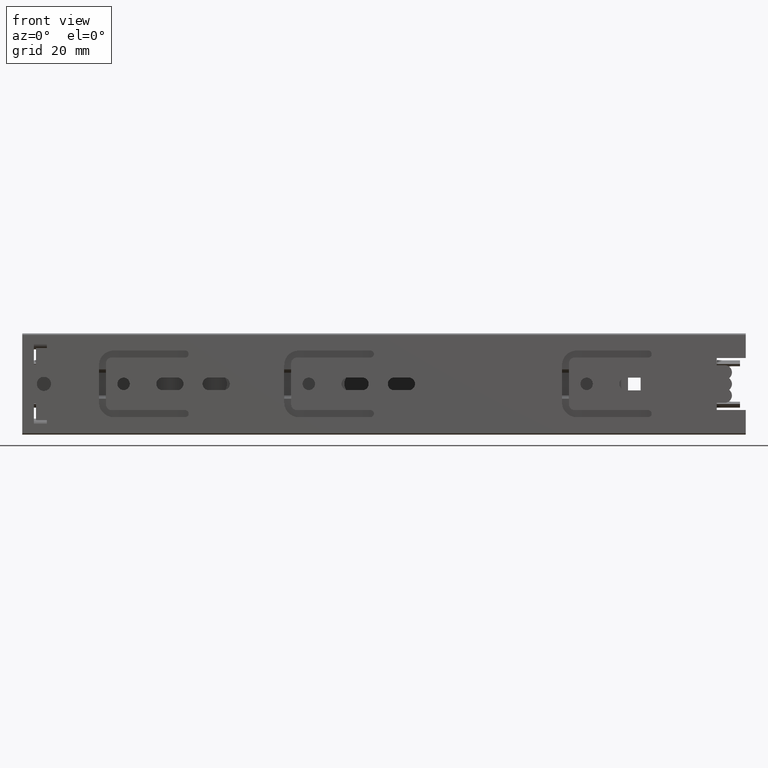
[diagram: clean part render]
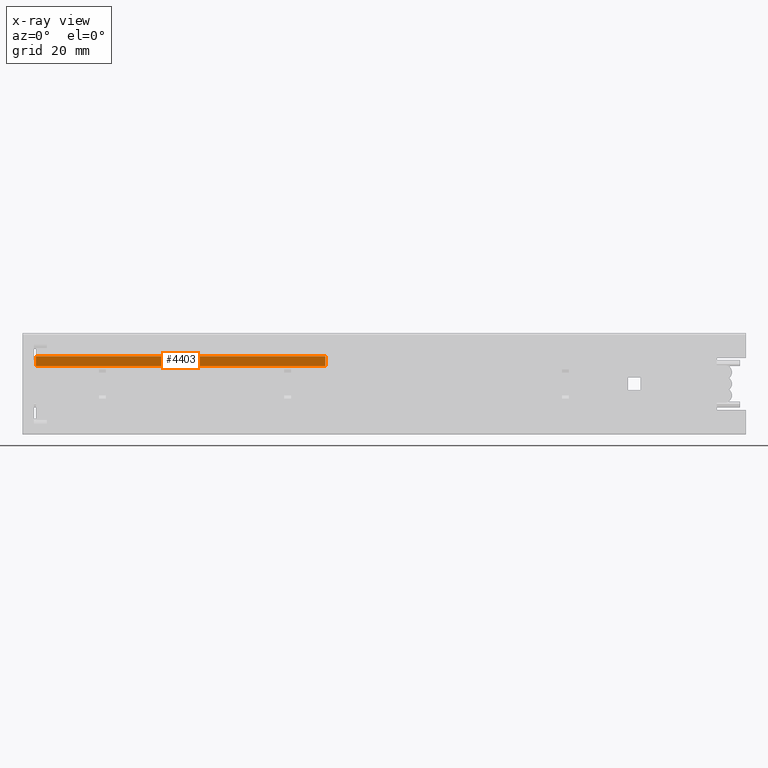
[diagram: x-ray — body ghosted, one internal face saturated and labeled with its STEP entity id]
A machine part, front view, then the same camera in x-ray: the body is ghosted and one INTERNAL B-rep face — a face not visible from any outside direction — is saturated and labeled: STEP entity #4403.
In plain terms, the highlighted planar face has unit normal (-0, -1, 0).
Its self-contained STEP definition (entity closure, byte-faithful):
#397=FACE_OUTER_BOUND('',#673,.T.);
#673=EDGE_LOOP('',(#3997,#3998,#3999,#4000));
#1086=LINE('',#7221,#1544);
#1103=LINE('',#7263,#1561);
#1122=LINE('',#7298,#1580);
#1135=LINE('',#7321,#1593);
#1544=VECTOR('',#5950,100.);
#1561=VECTOR('',#5983,3.4);
#1580=VECTOR('',#6004,3.4);
#1593=VECTOR('',#6025,100.);
#2147=VERTEX_POINT('',#7218);
#2148=VERTEX_POINT('',#7220);
#2165=VERTEX_POINT('',#7261);
#2180=VERTEX_POINT('',#7297);
#2746=EDGE_CURVE('',#2147,#2148,#1086,.T.);
#2767=EDGE_CURVE('',#2165,#2147,#1103,.T.);
#2786=EDGE_CURVE('',#2148,#2180,#1122,.T.);
#2799=EDGE_CURVE('',#2165,#2180,#1135,.T.);
#3997=ORIENTED_EDGE('',*,*,#2799,.T.);
#3998=ORIENTED_EDGE('',*,*,#2786,.F.);
#3999=ORIENTED_EDGE('',*,*,#2746,.F.);
#4000=ORIENTED_EDGE('',*,*,#2767,.F.);
#4180=PLANE('',#4801);
#4403=ADVANCED_FACE('',(#397),#4180,.T.);
#4801=AXIS2_PLACEMENT_3D('',#7322,#6026,#6027);
#5950=DIRECTION('',(1.,0.,0.));
#5983=DIRECTION('',(0.,4.89804275569922E-16,1.));
#6004=DIRECTION('',(0.,-4.89804275569922E-16,-1.));
#6025=DIRECTION('',(1.,0.,0.));
#6026=DIRECTION('center_axis',(0.,-1.,4.89804275569922E-16));
#6027=DIRECTION('ref_axis',(0.,-5.32907051820075E-16,-1.));
#7218=CARTESIAN_POINT('',(-50.,4.30000000000001,9.6));
#7220=CARTESIAN_POINT('',(50.,4.30000000000001,9.6));
#7221=CARTESIAN_POINT('',(0.,4.30000000000001,9.6));
#7261=CARTESIAN_POINT('',(-50.,4.30000000000001,6.2));
#7263=CARTESIAN_POINT('',(-50.,4.30000000000001,9.6));
#7297=CARTESIAN_POINT('',(50.,4.30000000000001,6.2));
#7298=CARTESIAN_POINT('',(50.,4.30000000000001,9.6));
#7321=CARTESIAN_POINT('',(0.,4.30000000000001,6.2));
#7322=CARTESIAN_POINT('Origin',(0.,4.30000000000001,9.6));